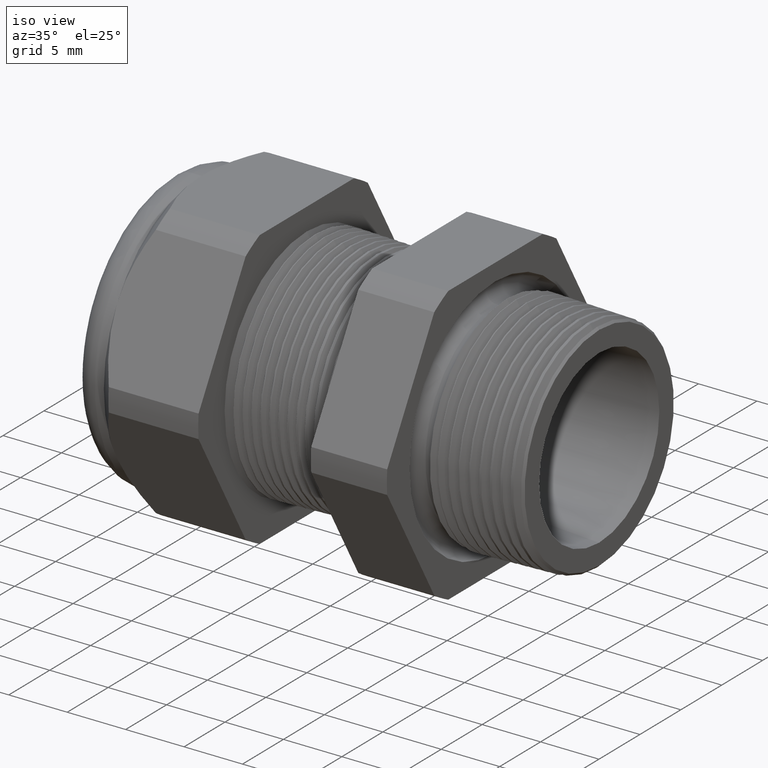
[diagram: clean part render]
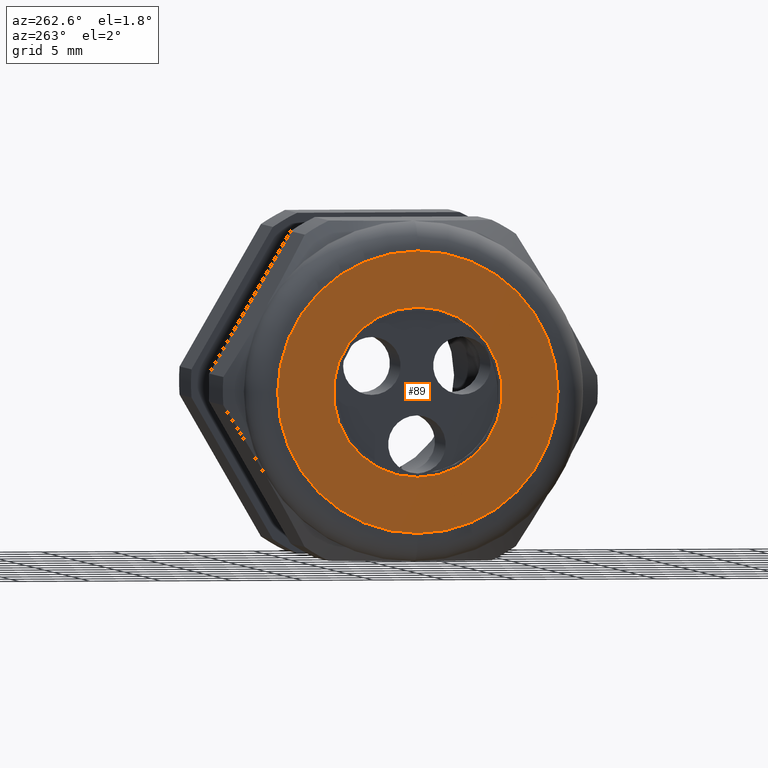
[diagram: tour spotlight — one face highlighted and labeled with its STEP entity id]
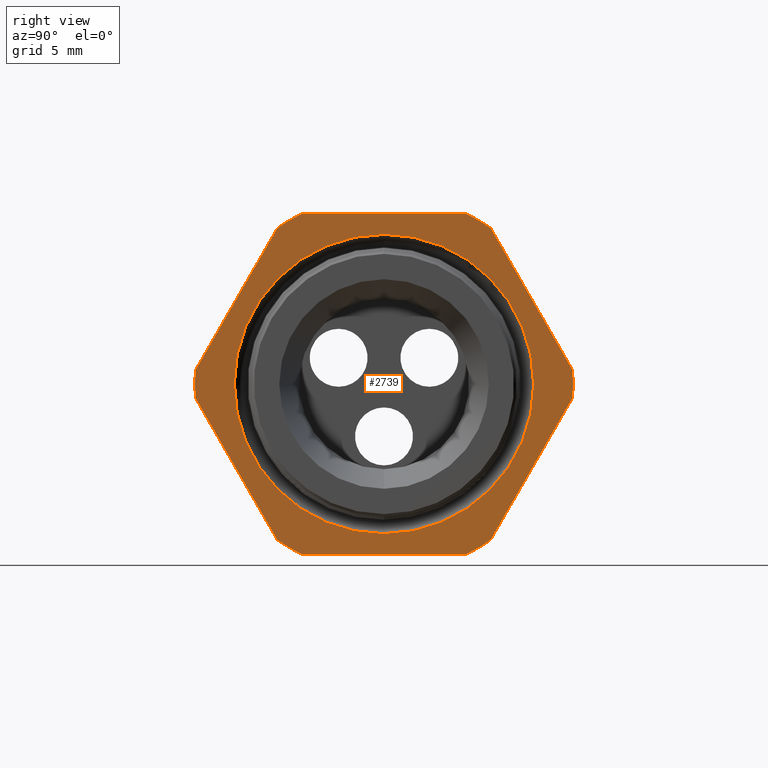
[diagram: tour spotlight — one face highlighted and labeled with its STEP entity id]
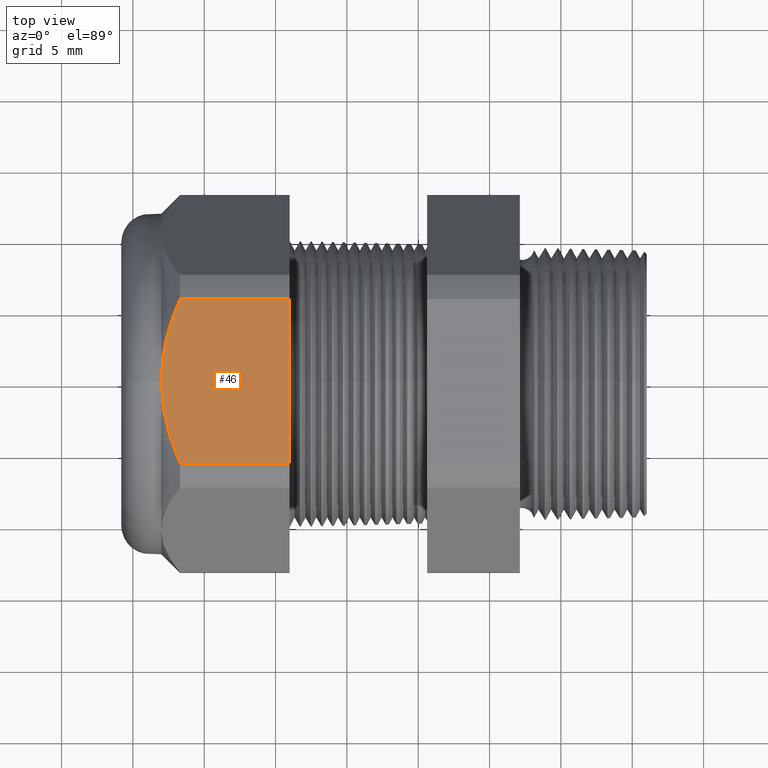
[diagram: tour spotlight — one face highlighted and labeled with its STEP entity id]
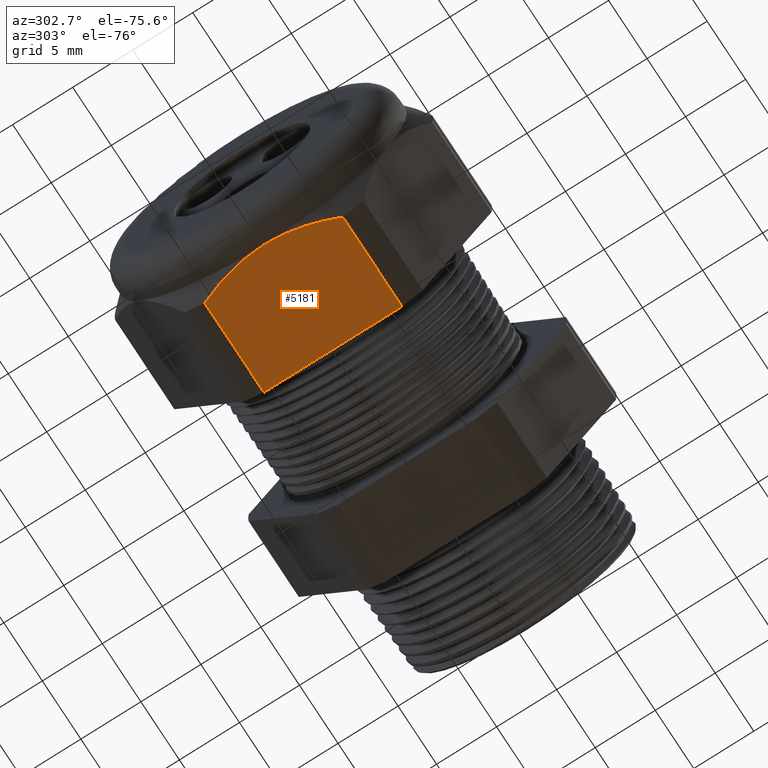
[diagram: tour spotlight — one face highlighted and labeled with its STEP entity id]
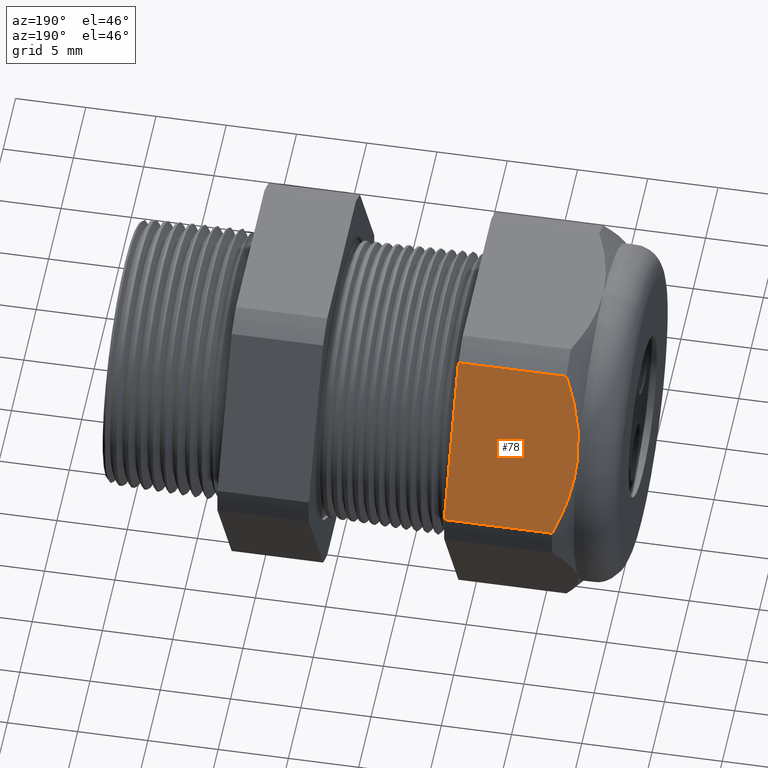
[diagram: tour spotlight — one face highlighted and labeled with its STEP entity id]
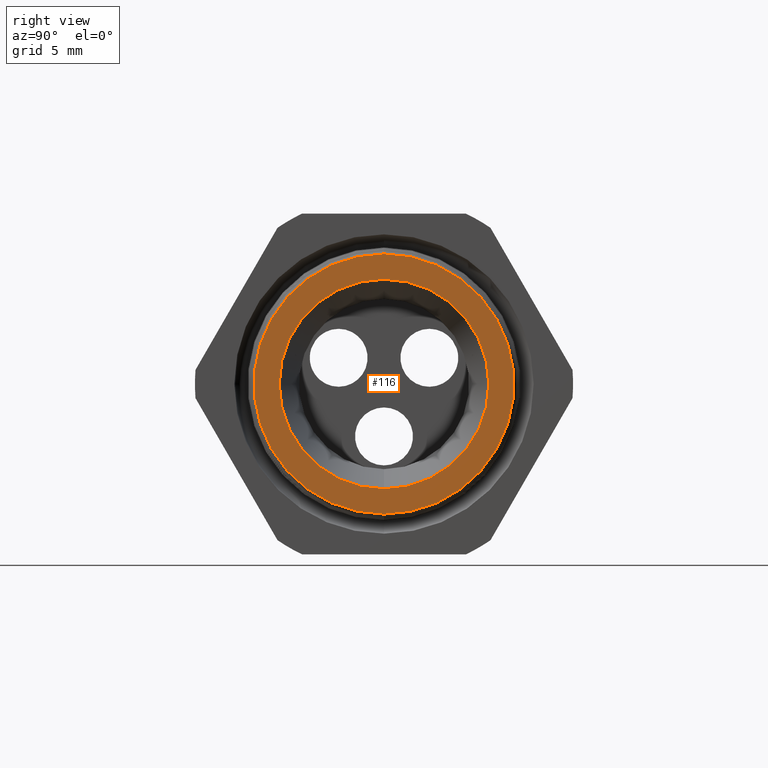
[diagram: tour spotlight — one face highlighted and labeled with its STEP entity id]
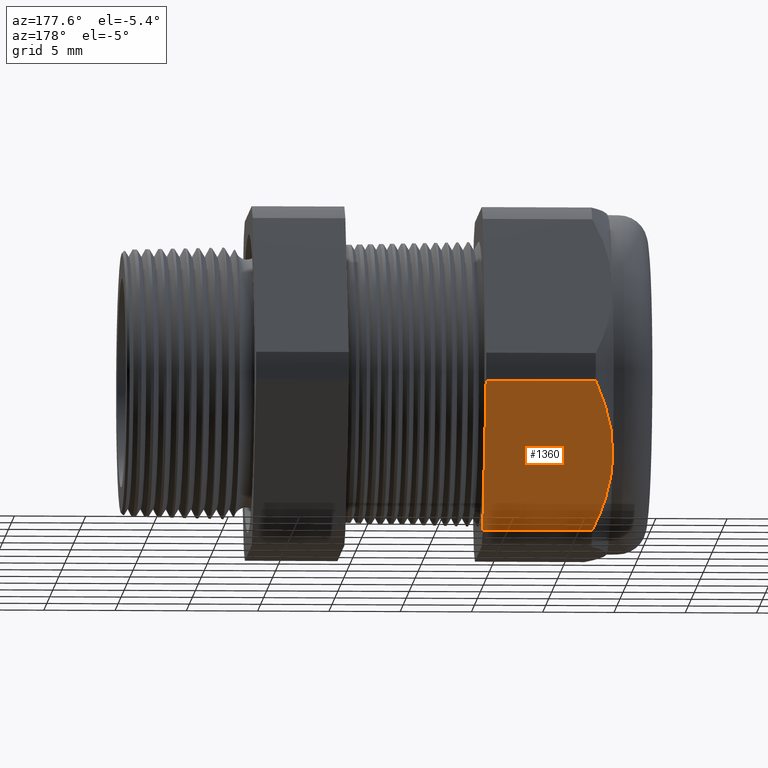
[diagram: tour spotlight — one face highlighted and labeled with its STEP entity id]
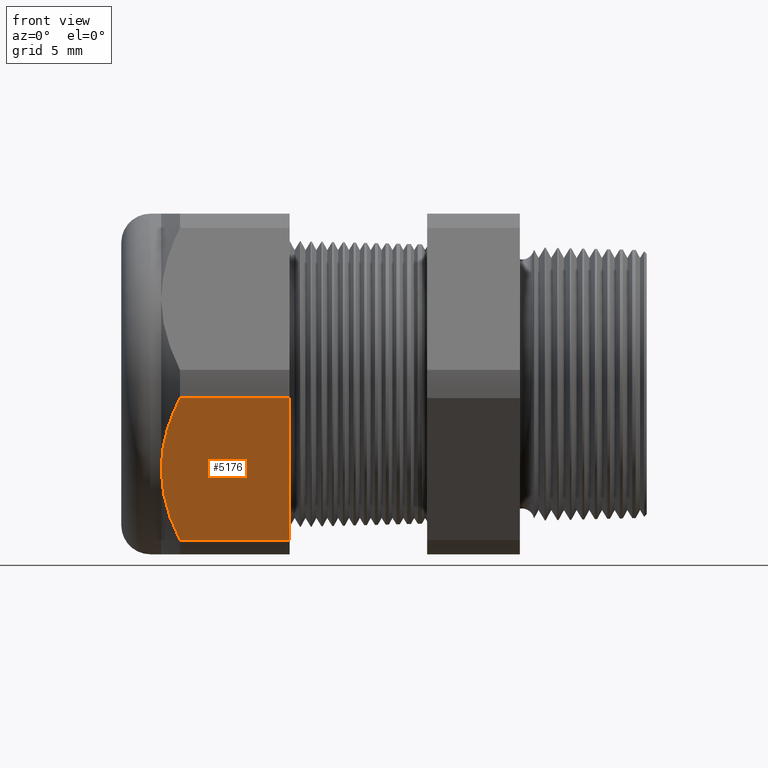
[diagram: tour spotlight — one face highlighted and labeled with its STEP entity id]
A machine part: a face-by-face anatomy tour. The part has 192 B-rep faces; the first image is the clean iso view, then the 8 largest visible faces are spotlighted one at a time (largest first), each with its STEP entity span.

Face 1 — auxiliary view, entity #89. In plain terms, the highlighted planar face has unit normal (-1, 0, 0).
Definition (entity closure, byte-faithful):
#86 = EDGE_CURVE ( 'NONE', #1430, #1429, #1924, .T. ) ;
#89 = ADVANCED_FACE ( 'NONE', ( #1914, #1913 ), #1912, .T. ) ;
#90 = EDGE_LOOP ( 'NONE', ( #91, #92 ) ) ;
#91 = ORIENTED_EDGE ( 'NONE', *, *, #1369, .T. ) ;
#92 = ORIENTED_EDGE ( 'NONE', *, *, #93, .T. ) ;
#93 = EDGE_CURVE ( 'NONE', #1367, #1370, #1907, .T. ) ;
#94 = EDGE_LOOP ( 'NONE', ( #145, #146 ) ) ;
#145 = ORIENTED_EDGE ( 'NONE', *, *, #86, .T. ) ;
#146 = ORIENTED_EDGE ( 'NONE', *, *, #1428, .T. ) ;
#1367 = VERTEX_POINT ( 'NONE', #4123 ) ;
#1369 = EDGE_CURVE ( 'NONE', #1370, #1367, #4122, .T. ) ;
#1370 = VERTEX_POINT ( 'NONE', #4117 ) ;
#1428 = EDGE_CURVE ( 'NONE', #1429, #1430, #4284, .T. ) ;
#1429 = VERTEX_POINT ( 'NONE', #4280 ) ;
#1430 = VERTEX_POINT ( 'NONE', #4279 ) ;
#1903 = DIRECTION ( 'NONE',  ( 0.0000000000000000000, 0.0000000000000000000, 1.000000000000000000 ) ) ;
#1904 = DIRECTION ( 'NONE',  ( -1.000000000000000000, 0.0000000000000000000, 0.0000000000000000000 ) ) ;
#1905 = CARTESIAN_POINT ( 'NONE',  ( -1.409999999999999900, 0.0000000000000000000, 0.0000000000000000000 ) ) ;
#1906 = AXIS2_PLACEMENT_3D ( 'NONE', #1905, #1904, #1903 ) ;
#1907 = CIRCLE ( 'NONE', #1906, 0.3899999999999999600 ) ;
#1908 = DIRECTION ( 'NONE',  ( 0.0000000000000000000, 0.0000000000000000000, 1.000000000000000000 ) ) ;
#1909 = DIRECTION ( 'NONE',  ( -1.000000000000000000, 0.0000000000000000000, 0.0000000000000000000 ) ) ;
#1910 = CARTESIAN_POINT ( 'NONE',  ( -1.409999999999999900, 0.4699999999999999200, 0.0000000000000000000 ) ) ;
#1911 = AXIS2_PLACEMENT_3D ( 'NONE', #1910, #1909, #1908 ) ;
#1912 = PLANE ( 'NONE',  #1911 ) ;
#1913 = FACE_BOUND ( 'NONE', #94, .T. ) ;
#1914 = FACE_OUTER_BOUND ( 'NONE', #90, .T. ) ;
#1915 = DIRECTION ( 'NONE',  ( 0.0000000000000000000, 0.0000000000000000000, -1.000000000000000000 ) ) ;
#1916 = DIRECTION ( 'NONE',  ( 1.000000000000000000, 0.0000000000000000000, 0.0000000000000000000 ) ) ;
#1917 = CARTESIAN_POINT ( 'NONE',  ( -1.409999999999999900, 0.0000000000000000000, 0.0000000000000000000 ) ) ;
#1918 = AXIS2_PLACEMENT_3D ( 'NONE', #1917, #1916, #1915 ) ;
#1924 = CIRCLE ( 'NONE', #1918, 0.2349999999999999900 ) ;
#4117 = CARTESIAN_POINT ( 'NONE',  ( -1.409999999999999900, 0.0000000000000000000, 0.3899999999999999600 ) ) ;
#4118 = DIRECTION ( 'NONE',  ( 0.0000000000000000000, 0.0000000000000000000, 1.000000000000000000 ) ) ;
#4119 = DIRECTION ( 'NONE',  ( -1.000000000000000000, 0.0000000000000000000, 0.0000000000000000000 ) ) ;
#4120 = CARTESIAN_POINT ( 'NONE',  ( -1.409999999999999900, 0.0000000000000000000, 0.0000000000000000000 ) ) ;
#4121 = AXIS2_PLACEMENT_3D ( 'NONE', #4120, #4119, #4118 ) ;
#4122 = CIRCLE ( 'NONE', #4121, 0.3899999999999999600 ) ;
#4123 = CARTESIAN_POINT ( 'NONE',  ( -1.409999999999999900, 5.265981236333617600E-017, -0.3899999999999999600 ) ) ;
#4279 = CARTESIAN_POINT ( 'NONE',  ( -1.409999999999999900, 0.0000000000000000000, -0.2349999999999999900 ) ) ;
#4280 = CARTESIAN_POINT ( 'NONE',  ( -1.409999999999999900, 2.877919977996279800E-017, 0.2349999999999999900 ) ) ;
#4281 = DIRECTION ( 'NONE',  ( 0.0000000000000000000, 0.0000000000000000000, -1.000000000000000000 ) ) ;
#4282 = DIRECTION ( 'NONE',  ( 1.000000000000000000, 0.0000000000000000000, 0.0000000000000000000 ) ) ;
#4283 = AXIS2_PLACEMENT_3D ( 'NONE', #4290, #4282, #4281 ) ;
#4284 = CIRCLE ( 'NONE', #4283, 0.2349999999999999900 ) ;
#4290 = CARTESIAN_POINT ( 'NONE',  ( -1.409999999999999900, 0.0000000000000000000, 0.0000000000000000000 ) ) ;

Face 2 — right view, entity #2739. In plain terms, the highlighted planar face has unit normal (1, 0, 0).
Definition (entity closure, byte-faithful):
#107 = EDGE_CURVE ( 'NONE', #4051, #2204, #1953, .T. ) ;
#956 = VERTEX_POINT ( 'NONE', #3298 ) ;
#958 = EDGE_CURVE ( 'NONE', #956, #959, #3297, .T. ) ;
#959 = VERTEX_POINT ( 'NONE', #3292 ) ;
#1377 = ORIENTED_EDGE ( 'NONE', *, *, #4257, .T. ) ;
#1949 = DIRECTION ( 'NONE',  ( 0.0000000000000000000, 0.0000000000000000000, -1.000000000000000000 ) ) ;
#1950 = DIRECTION ( 'NONE',  ( 1.000000000000000000, 0.0000000000000000000, 0.0000000000000000000 ) ) ;
#1951 = CARTESIAN_POINT ( 'NONE',  ( -0.3100000000000000000, 0.0000000000000000000, 0.0000000000000000000 ) ) ;
#1952 = AXIS2_PLACEMENT_3D ( 'NONE', #1951, #1950, #1949 ) ;
#1953 = CIRCLE ( 'NONE', #1952, 0.5217000000000000500 ) ;
#2204 = VERTEX_POINT ( 'NONE', #4819 ) ;
#2304 = VERTEX_POINT ( 'NONE', #4813 ) ;
#2572 = EDGE_CURVE ( 'NONE', #2204, #2304, #4812, .T. ) ;
#2596 = EDGE_LOOP ( 'NONE', ( #2606, #4250, #4251, #4228, #3811, #3552, #1377, #4259, #4261, #4245, #4255, #4247 ) ) ;
#2606 = ORIENTED_EDGE ( 'NONE', *, *, #2572, .T. ) ;
#2620 = EDGE_CURVE ( 'NONE', #959, #956, #4808, .T. ) ;
#2627 = ORIENTED_EDGE ( 'NONE', *, *, #958, .F. ) ;
#2636 = ORIENTED_EDGE ( 'NONE', *, *, #2620, .F. ) ;
#2739 = ADVANCED_FACE ( 'NONE', ( #4803, #4802 ), #4801, .T. ) ;
#2948 = EDGE_LOOP ( 'NONE', ( #2636, #2627 ) ) ;
#3292 = CARTESIAN_POINT ( 'NONE',  ( -0.3100000000000000000, 0.0000000000000000000, -0.4130016155952135900 ) ) ;
#3293 = DIRECTION ( 'NONE',  ( 0.0000000000000000000, 0.0000000000000000000, -1.000000000000000000 ) ) ;
#3294 = DIRECTION ( 'NONE',  ( 1.000000000000000000, 0.0000000000000000000, 0.0000000000000000000 ) ) ;
#3295 = CARTESIAN_POINT ( 'NONE',  ( -0.3100000000000000000, 0.0000000000000000000, 0.0000000000000000000 ) ) ;
#3296 = AXIS2_PLACEMENT_3D ( 'NONE', #3295, #3294, #3293 ) ;
#3297 = CIRCLE ( 'NONE', #3296, 0.4130016155952135900 ) ;
#3298 = CARTESIAN_POINT ( 'NONE',  ( -0.3100000000000000000, 5.057811065813639400E-017, 0.4130016155952135900 ) ) ;
#3497 = EDGE_CURVE ( 'NONE', #3534, #3570, #4861, .T. ) ;
#3534 = VERTEX_POINT ( 'NONE', #4852 ) ;
#3552 = ORIENTED_EDGE ( 'NONE', *, *, #3497, .T. ) ;
#3564 = EDGE_CURVE ( 'NONE', #4025, #3534, #4851, .T. ) ;
#3570 = VERTEX_POINT ( 'NONE', #4847 ) ;
#3811 = ORIENTED_EDGE ( 'NONE', *, *, #3564, .T. ) ;
#4025 = VERTEX_POINT ( 'NONE', #4846 ) ;
#4051 = VERTEX_POINT ( 'NONE', #4845 ) ;
#4052 = VERTEX_POINT ( 'NONE', #4844 ) ;
#4149 = EDGE_CURVE ( 'NONE', #4052, #4025, #4843, .T. ) ;
#4228 = ORIENTED_EDGE ( 'NONE', *, *, #4149, .T. ) ;
#4244 = VERTEX_POINT ( 'NONE', #4838 ) ;
#4245 = ORIENTED_EDGE ( 'NONE', *, *, #4253, .T. ) ;
#4246 = EDGE_CURVE ( 'NONE', #4248, #4052, #4837, .T. ) ;
#4247 = ORIENTED_EDGE ( 'NONE', *, *, #107, .T. ) ;
#4248 = VERTEX_POINT ( 'NONE', #4833 ) ;
#4249 = EDGE_CURVE ( 'NONE', #2304, #4248, #4894, .T. ) ;
#4250 = ORIENTED_EDGE ( 'NONE', *, *, #4249, .T. ) ;
#4251 = ORIENTED_EDGE ( 'NONE', *, *, #4246, .T. ) ;
#4252 = EDGE_CURVE ( 'NONE', #4254, #4051, #4895, .T. ) ;
#4253 = EDGE_CURVE ( 'NONE', #4244, #4254, #4886, .T. ) ;
#4254 = VERTEX_POINT ( 'NONE', #4881 ) ;
#4255 = ORIENTED_EDGE ( 'NONE', *, *, #4252, .T. ) ;
#4256 = VERTEX_POINT ( 'NONE', #4880 ) ;
#4257 = EDGE_CURVE ( 'NONE', #3570, #4258, #4879, .T. ) ;
#4258 = VERTEX_POINT ( 'NONE', #4875 ) ;
#4259 = ORIENTED_EDGE ( 'NONE', *, *, #4260, .T. ) ;
#4260 = EDGE_CURVE ( 'NONE', #4258, #4256, #4874, .T. ) ;
#4261 = ORIENTED_EDGE ( 'NONE', *, *, #4262, .T. ) ;
#4262 = EDGE_CURVE ( 'NONE', #4256, #4244, #4869, .T. ) ;
#4801 = PLANE ( 'NONE',  #4865 ) ;
#4802 = FACE_OUTER_BOUND ( 'NONE', #2596, .T. ) ;
#4803 = FACE_BOUND ( 'NONE', #2948, .T. ) ;
#4804 = DIRECTION ( 'NONE',  ( 0.0000000000000000000, 0.0000000000000000000, -1.000000000000000000 ) ) ;
#4805 = DIRECTION ( 'NONE',  ( 1.000000000000000000, 0.0000000000000000000, 0.0000000000000000000 ) ) ;
#4806 = CARTESIAN_POINT ( 'NONE',  ( -0.3100000000000000000, 0.0000000000000000000, 0.0000000000000000000 ) ) ;
#4807 = AXIS2_PLACEMENT_3D ( 'NONE', #4806, #4805, #4804 ) ;
#4808 = CIRCLE ( 'NONE', #4807, 0.4130016155952135900 ) ;
#4809 = DIRECTION ( 'NONE',  ( 0.0000000000000000000, 0.5000000000000000000, 0.8660254037844386000 ) ) ;
#4810 = VECTOR ( 'NONE', #4809, 39.37007874015748900 ) ;
#4811 = CARTESIAN_POINT ( 'NONE',  ( -0.3100000000000000000, 0.6420319397786863300, 0.1720319397786860500 ) ) ;
#4812 = LINE ( 'NONE', #4811, #4810 ) ;
#4813 = CARTESIAN_POINT ( 'NONE',  ( -0.3100000000000000000, 0.5202473208008777700, -0.03890520787129528300 ) ) ;
#4819 = CARTESIAN_POINT ( 'NONE',  ( -0.3100000000000000000, 0.2938165587564948700, -0.4310947921287048800 ) ) ;
#4833 = CARTESIAN_POINT ( 'NONE',  ( -0.3100000000000000000, 0.5202473208008776600, 0.03890520787129518600 ) ) ;
#4834 = DIRECTION ( 'NONE',  ( 0.0000000000000000000, -0.4999999999999998300, 0.8660254037844386000 ) ) ;
#4835 = VECTOR ( 'NONE', #4834, 39.37007874015748900 ) ;
#4836 = CARTESIAN_POINT ( 'NONE',  ( -0.3100000000000000000, 0.6420319397786862200, -0.1720319397786860500 ) ) ;
#4837 = LINE ( 'NONE', #4836, #4835 ) ;
#4838 = CARTESIAN_POINT ( 'NONE',  ( -0.3100000000000000000, -0.2938165587564942600, -0.4310947921287053300 ) ) ;
#4839 = DIRECTION ( 'NONE',  ( 0.0000000000000000000, 0.0000000000000000000, -1.000000000000000000 ) ) ;
#4840 = DIRECTION ( 'NONE',  ( 1.000000000000000000, 0.0000000000000000000, 0.0000000000000000000 ) ) ;
#4841 = CARTESIAN_POINT ( 'NONE',  ( -0.3100000000000000000, 0.0000000000000000000, 0.0000000000000000000 ) ) ;
#4842 = AXIS2_PLACEMENT_3D ( 'NONE', #4841, #4840, #4839 ) ;
#4843 = CIRCLE ( 'NONE', #4842, 0.5217000000000000500 ) ;
#4844 = CARTESIAN_POINT ( 'NONE',  ( -0.3100000000000000000, 0.2938165587564948700, 0.4310947921287048800 ) ) ;
#4845 = CARTESIAN_POINT ( 'NONE',  ( -0.3100000000000000000, 0.2264307620443831200, -0.4700000000000000300 ) ) ;
#4846 = CARTESIAN_POINT ( 'NONE',  ( -0.3100000000000000000, 0.2264307620443832800, 0.4699999999999999200 ) ) ;
#4847 = CARTESIAN_POINT ( 'NONE',  ( -0.3100000000000000000, -0.2938165587564948700, 0.4310947921287048800 ) ) ;
#4848 = DIRECTION ( 'NONE',  ( 0.0000000000000000000, -1.000000000000000000, 0.0000000000000000000 ) ) ;
#4849 = VECTOR ( 'NONE', #4848, 39.37007874015748100 ) ;
#4850 = CARTESIAN_POINT ( 'NONE',  ( -0.3100000000000000000, 0.9399999999999999500, 0.4699999999999999200 ) ) ;
#4851 = LINE ( 'NONE', #4850, #4849 ) ;
#4852 = CARTESIAN_POINT ( 'NONE',  ( -0.3100000000000000000, -0.2264307620443835600, 0.4699999999999997500 ) ) ;
#4857 = DIRECTION ( 'NONE',  ( 0.0000000000000000000, 0.0000000000000000000, -1.000000000000000000 ) ) ;
#4858 = DIRECTION ( 'NONE',  ( 1.000000000000000000, 0.0000000000000000000, 0.0000000000000000000 ) ) ;
#4859 = CARTESIAN_POINT ( 'NONE',  ( -0.3100000000000000000, 0.0000000000000000000, 0.0000000000000000000 ) ) ;
#4860 = AXIS2_PLACEMENT_3D ( 'NONE', #4859, #4858, #4857 ) ;
#4861 = CIRCLE ( 'NONE', #4860, 0.5217000000000000500 ) ;
#4862 = DIRECTION ( 'NONE',  ( 0.0000000000000000000, 0.0000000000000000000, -1.000000000000000000 ) ) ;
#4863 = DIRECTION ( 'NONE',  ( 1.000000000000000000, 0.0000000000000000000, 0.0000000000000000000 ) ) ;
#4864 = CARTESIAN_POINT ( 'NONE',  ( -0.3100000000000000000, 0.9399999999999999500, 0.0000000000000000000 ) ) ;
#4865 = AXIS2_PLACEMENT_3D ( 'NONE', #4864, #4863, #4862 ) ;
#4866 = DIRECTION ( 'NONE',  ( 0.0000000000000000000, 0.5000000000000001100, -0.8660254037844384900 ) ) ;
#4867 = VECTOR ( 'NONE', #4866, 39.37007874015748900 ) ;
#4868 = CARTESIAN_POINT ( 'NONE',  ( -0.3100000000000000000, -0.1720319397786861700, -0.6420319397786864400 ) ) ;
#4869 = LINE ( 'NONE', #4868, #4867 ) ;
#4870 = DIRECTION ( 'NONE',  ( 0.0000000000000000000, 0.0000000000000000000, -1.000000000000000000 ) ) ;
#4871 = DIRECTION ( 'NONE',  ( 1.000000000000000000, 0.0000000000000000000, 0.0000000000000000000 ) ) ;
#4872 = CARTESIAN_POINT ( 'NONE',  ( -0.3100000000000000000, 0.0000000000000000000, 0.0000000000000000000 ) ) ;
#4873 = AXIS2_PLACEMENT_3D ( 'NONE', #4872, #4871, #4870 ) ;
#4874 = CIRCLE ( 'NONE', #4873, 0.5217000000000000500 ) ;
#4875 = CARTESIAN_POINT ( 'NONE',  ( -0.3100000000000000000, -0.5202473208008777700, 0.03890520787129464500 ) ) ;
#4876 = DIRECTION ( 'NONE',  ( 0.0000000000000000000, -0.4999999999999997200, -0.8660254037844388200 ) ) ;
#4877 = VECTOR ( 'NONE', #4876, 39.37007874015748100 ) ;
#4878 = CARTESIAN_POINT ( 'NONE',  ( -0.3100000000000000000, -0.1720319397786864200, 0.6420319397786857800 ) ) ;
#4879 = LINE ( 'NONE', #4878, #4877 ) ;
#4880 = CARTESIAN_POINT ( 'NONE',  ( -0.3100000000000000000, -0.5202473208008777700, -0.03890520787129494300 ) ) ;
#4881 = CARTESIAN_POINT ( 'NONE',  ( -0.3100000000000000000, -0.2264307620443830900, -0.4700000000000000300 ) ) ;
#4882 = DIRECTION ( 'NONE',  ( 0.0000000000000000000, 0.0000000000000000000, -1.000000000000000000 ) ) ;
#4883 = DIRECTION ( 'NONE',  ( 1.000000000000000000, 0.0000000000000000000, 0.0000000000000000000 ) ) ;
#4884 = CARTESIAN_POINT ( 'NONE',  ( -0.3100000000000000000, 0.0000000000000000000, 0.0000000000000000000 ) ) ;
#4885 = AXIS2_PLACEMENT_3D ( 'NONE', #4884, #4883, #4882 ) ;
#4886 = CIRCLE ( 'NONE', #4885, 0.5217000000000000500 ) ;
#4887 = DIRECTION ( 'NONE',  ( 0.0000000000000000000, 1.000000000000000000, 0.0000000000000000000 ) ) ;
#4888 = VECTOR ( 'NONE', #4887, 39.37007874015748100 ) ;
#4889 = CARTESIAN_POINT ( 'NONE',  ( -0.3100000000000000000, 0.9399999999999999500, -0.4700000000000000300 ) ) ;
#4890 = DIRECTION ( 'NONE',  ( 0.0000000000000000000, 0.0000000000000000000, -1.000000000000000000 ) ) ;
#4891 = DIRECTION ( 'NONE',  ( 1.000000000000000000, 0.0000000000000000000, 0.0000000000000000000 ) ) ;
#4892 = CARTESIAN_POINT ( 'NONE',  ( -0.3100000000000000000, 0.0000000000000000000, 0.0000000000000000000 ) ) ;
#4893 = AXIS2_PLACEMENT_3D ( 'NONE', #4892, #4891, #4890 ) ;
#4894 = CIRCLE ( 'NONE', #4893, 0.5217000000000000500 ) ;
#4895 = LINE ( 'NONE', #4889, #4888 ) ;

Face 3 — top view, entity #46. In plain terms, the highlighted planar face has unit normal (0, 0, 1).
Definition (entity closure, byte-faithful):
#1 = ORIENTED_EDGE ( 'NONE', *, *, #3, .F. ) ;
#3 = EDGE_CURVE ( 'NONE', #43, #4, #1742, .T. ) ;
#4 = VERTEX_POINT ( 'NONE', #1734 ) ;
#40 = VERTEX_POINT ( 'NONE', #1779 ) ;
#42 = EDGE_CURVE ( 'NONE', #43, #40, #1778, .T. ) ;
#43 = VERTEX_POINT ( 'NONE', #1774 ) ;
#46 = ADVANCED_FACE ( 'NONE', ( #1829 ), #1823, .T. ) ;
#47 = EDGE_LOOP ( 'NONE', ( #48, #49, #51, #5212, #1 ) ) ;
#48 = ORIENTED_EDGE ( 'NONE', *, *, #42, .T. ) ;
#49 = ORIENTED_EDGE ( 'NONE', *, *, #50, .T. ) ;
#50 = EDGE_CURVE ( 'NONE', #40, #1358, #1818, .T. ) ;
#51 = ORIENTED_EDGE ( 'NONE', *, *, #52, .T. ) ;
#52 = EDGE_CURVE ( 'NONE', #1358, #5214, #1817, .T. ) ;
#1358 = VERTEX_POINT ( 'NONE', #4142 ) ;
#1734 = CARTESIAN_POINT ( 'NONE',  ( -0.9454330708661420300, -0.2264307620443835600, 0.4699999999999997500 ) ) ;
#1735 = DIRECTION ( 'NONE',  ( 0.0000000000000000000, -1.000000000000000000, 0.0000000000000000000 ) ) ;
#1736 = VECTOR ( 'NONE', #1735, 39.37007874015748100 ) ;
#1737 = CARTESIAN_POINT ( 'NONE',  ( -0.9454330708661420300, 0.3950000000000000200, 0.4699999999999999200 ) ) ;
#1742 = LINE ( 'NONE', #1737, #1736 ) ;
#1774 = CARTESIAN_POINT ( 'NONE',  ( -0.9454330708661420300, 0.2264307620443832800, 0.4699999999999999200 ) ) ;
#1775 = DIRECTION ( 'NONE',  ( -1.000000000000000000, 0.0000000000000000000, 0.0000000000000000000 ) ) ;
#1776 = VECTOR ( 'NONE', #1775, 39.37007874015748100 ) ;
#1777 = CARTESIAN_POINT ( 'NONE',  ( 0.04000000000000011900, 0.2264307620443832800, 0.4699999999999999200 ) ) ;
#1778 = LINE ( 'NONE', #1777, #1776 ) ;
#1779 = CARTESIAN_POINT ( 'NONE',  ( -1.248063779527559300, 0.2264307620443832800, 0.4699999999999999200 ) ) ;
#1804 = CARTESIAN_POINT ( 'NONE',  ( -1.294778598172673200, -0.07783554612607102000, 0.4699999999999999200 ) ) ;
#1805 = CARTESIAN_POINT ( 'NONE',  ( -1.299763779527558900, -0.03934296915062179800, 0.4699999999999998600 ) ) ;
#1806 = CARTESIAN_POINT ( 'NONE',  ( -1.299763779527559200, 0.0000000000000000000, 0.4699999999999999200 ) ) ;
#1807 = CARTESIAN_POINT ( 'NONE',  ( -1.299763779527559200, 0.0000000000000000000, 0.4699999999999999200 ) ) ;
#1808 = CARTESIAN_POINT ( 'NONE',  ( -1.299763779527559200, 0.01964242875915815600, 0.4699999999999999200 ) ) ;
#1809 = CARTESIAN_POINT ( 'NONE',  ( -1.298517019735540900, 0.03924163778662356100, 0.4699999999999999700 ) ) ;
#1810 = CARTESIAN_POINT ( 'NONE',  ( -1.293749478914869100, 0.07782038235249977300, 0.4699999999999999200 ) ) ;
#1811 = CARTESIAN_POINT ( 'NONE',  ( -1.290231001418866900, 0.09688970369981479700, 0.4699999999999999700 ) ) ;
#1812 = CARTESIAN_POINT ( 'NONE',  ( -1.281202062721104900, 0.1346420459264778800, 0.4699999999999999200 ) ) ;
#1813 = CARTESIAN_POINT ( 'NONE',  ( -1.275692781244512700, 0.1533252955870067800, 0.4699999999999999200 ) ) ;
#1814 = CARTESIAN_POINT ( 'NONE',  ( -1.262974602953726100, 0.1903621927138390800, 0.4699999999999999700 ) ) ;
#1815 = CARTESIAN_POINT ( 'NONE',  ( -1.255800509309333000, 0.2086052162099335800, 0.4699999999999997500 ) ) ;
#1816 = CARTESIAN_POINT ( 'NONE',  ( -1.248063779527559300, 0.2264307620443832800, 0.4699999999999999200 ) ) ;
#1817 = B_SPLINE_CURVE_WITH_KNOTS ( 'NONE', 3,
 ( #1806, #1805, #1804, #1862, #1861, #1860, #1859, #1858 ),
 .UNSPECIFIED., .F., .F.,
 ( 4, 2, 2, 4 ),
 ( 0.01501897965151427300, 0.01796263803772293500, 0.01943446723082726400, 0.02090629642393159600 ),
 .UNSPECIFIED. ) ;
#1818 = B_SPLINE_CURVE_WITH_KNOTS ( 'NONE', 3,
 ( #1816, #1815, #1814, #1813, #1812, #1811, #1810, #1809, #1808, #1807 ),
 .UNSPECIFIED., .F., .F.,
 ( 4, 2, 2, 2, 4 ),
 ( 0.009140358755258070800, 0.01061001397932212100, 0.01207966920338617200, 0.01354932442745022300, 0.01501897965151427300 ),
 .UNSPECIFIED. ) ;
#1819 = DIRECTION ( 'NONE',  ( 1.000000000000000000, 0.0000000000000000000, 0.0000000000000000000 ) ) ;
#1820 = DIRECTION ( 'NONE',  ( 0.0000000000000000000, 0.0000000000000000000, 1.000000000000000000 ) ) ;
#1821 = CARTESIAN_POINT ( 'NONE',  ( 0.04000000000000011900, -0.2264307620443832800, 0.4699999999999999200 ) ) ;
#1822 = AXIS2_PLACEMENT_3D ( 'NONE', #1821, #1820, #1819 ) ;
#1823 = PLANE ( 'NONE',  #1822 ) ;
#1829 = FACE_OUTER_BOUND ( 'NONE', #47, .T. ) ;
#1858 = CARTESIAN_POINT ( 'NONE',  ( -1.248063779527559300, -0.2264307620443835900, 0.4699999999999999200 ) ) ;
#1859 = CARTESIAN_POINT ( 'NONE',  ( -1.255800659726856300, -0.2086048696456210800, 0.4700000000000000300 ) ) ;
#1860 = CARTESIAN_POINT ( 'NONE',  ( -1.262949366997028400, -0.1904348960138968800, 0.4699999999999999200 ) ) ;
#1861 = CARTESIAN_POINT ( 'NONE',  ( -1.275712352585575800, -0.1532690879941745200, 0.4699999999999997500 ) ) ;
#1862 = CARTESIAN_POINT ( 'NONE',  ( -1.281231388637372700, -0.1345390626635396500, 0.4699999999999999200 ) ) ;
#4142 = CARTESIAN_POINT ( 'NONE',  ( -1.299763779527559200, 0.0000000000000000000, 0.4699999999999999200 ) ) ;
#4490 = CARTESIAN_POINT ( 'NONE',  ( 0.04000000000000011900, -0.2264307620443835600, 0.4699999999999997500 ) ) ;
#4744 = VECTOR ( 'NONE', #5045, 39.37007874015748100 ) ;
#4990 = LINE ( 'NONE', #4490, #4744 ) ;
#5040 = CARTESIAN_POINT ( 'NONE',  ( -1.248063779527559300, -0.2264307620443835900, 0.4699999999999999200 ) ) ;
#5045 = DIRECTION ( 'NONE',  ( -1.000000000000000000, 0.0000000000000000000, 0.0000000000000000000 ) ) ;
#5211 = EDGE_CURVE ( 'NONE', #4, #5214, #4990, .T. ) ;
#5212 = ORIENTED_EDGE ( 'NONE', *, *, #5211, .F. ) ;
#5214 = VERTEX_POINT ( 'NONE', #5040 ) ;

Face 4 — auxiliary view, entity #5181. In plain terms, the highlighted planar face has unit normal (0, 0, -1).
Definition (entity closure, byte-faithful):
#216 = EDGE_CURVE ( 'NONE', #1422, #5202, #2142, .T. ) ;
#738 = ORIENTED_EDGE ( 'NONE', *, *, #216, .T. ) ;
#965 = EDGE_CURVE ( 'NONE', #5185, #1422, #3341, .T. ) ;
#1422 = VERTEX_POINT ( 'NONE', #4296 ) ;
#2128 = CARTESIAN_POINT ( 'NONE',  ( -1.248063779527559300, 0.2264307620443831200, -0.4700000000000000300 ) ) ;
#2129 = CARTESIAN_POINT ( 'NONE',  ( -1.255800509309333400, 0.2086052162099334700, -0.4700000000000000300 ) ) ;
#2130 = CARTESIAN_POINT ( 'NONE',  ( -1.262974602953726300, 0.1903621927138388900, -0.4700000000000000300 ) ) ;
#2131 = CARTESIAN_POINT ( 'NONE',  ( -1.275692781244513400, 0.1533252955870066900, -0.4700000000000000800 ) ) ;
#2132 = CARTESIAN_POINT ( 'NONE',  ( -1.281202062721105600, 0.1346420459264778300, -0.4700000000000002000 ) ) ;
#2133 = CARTESIAN_POINT ( 'NONE',  ( -1.290231001418866700, 0.09688970369981478300, -0.4699999999999999700 ) ) ;
#2134 = CARTESIAN_POINT ( 'NONE',  ( -1.293749478914868700, 0.07782038235249985600, -0.4700000000000000300 ) ) ;
#2135 = CARTESIAN_POINT ( 'NONE',  ( -1.298517019735541300, 0.03924163778662365800, -0.4700000000000000300 ) ) ;
#2136 = CARTESIAN_POINT ( 'NONE',  ( -1.299763779527558900, 0.01964242875915822200, -0.4700000000000000800 ) ) ;
#2137 = CARTESIAN_POINT ( 'NONE',  ( -1.299763779527559200, 0.0000000000000000000, -0.4700000000000000300 ) ) ;
#2142 = B_SPLINE_CURVE_WITH_KNOTS ( 'NONE', 3,
 ( #2137, #2136, #2135, #2134, #2133, #2132, #2131, #2130, #2129, #2128 ),
 .UNSPECIFIED., .F., .F.,
 ( 4, 2, 2, 2, 4 ),
 ( 0.01398828679202869000, 0.01545854684696777000, 0.01692880690190685200, 0.01839906695684593100, 0.01986932701178501000 ),
 .UNSPECIFIED. ) ;
#3330 = CARTESIAN_POINT ( 'NONE',  ( -1.299763779527559200, 0.0000000000000000000, -0.4700000000000000300 ) ) ;
#3331 = CARTESIAN_POINT ( 'NONE',  ( -1.299763779527558900, -0.03934296915062162500, -0.4699999999999999200 ) ) ;
#3332 = CARTESIAN_POINT ( 'NONE',  ( -1.294778598172672500, -0.07783554612607064500, -0.4699999999999999700 ) ) ;
#3333 = CARTESIAN_POINT ( 'NONE',  ( -1.281231388637373400, -0.1345390626635392100, -0.4700000000000000300 ) ) ;
#3334 = CARTESIAN_POINT ( 'NONE',  ( -1.275712352585575800, -0.1532690879941739600, -0.4699999999999999700 ) ) ;
#3335 = CARTESIAN_POINT ( 'NONE',  ( -1.262949366997028900, -0.1904348960138962400, -0.4700000000000000300 ) ) ;
#3336 = CARTESIAN_POINT ( 'NONE',  ( -1.255800659726855600, -0.2086048696456203900, -0.4700000000000000800 ) ) ;
#3337 = CARTESIAN_POINT ( 'NONE',  ( -1.248063779527559300, -0.2264307620443830600, -0.4700000000000000300 ) ) ;
#3341 = B_SPLINE_CURVE_WITH_KNOTS ( 'NONE', 3,
 ( #3337, #3336, #3335, #3334, #3333, #3332, #3331, #3330 ),
 .UNSPECIFIED., .F., .F.,
 ( 4, 2, 2, 4 ),
 ( 0.008098547117357340200, 0.009570982036025176300, 0.01104341695469301400, 0.01398828679202869000 ),
 .UNSPECIFIED. ) ;
#4296 = CARTESIAN_POINT ( 'NONE',  ( -1.299763779527559200, 0.0000000000000000000, -0.4700000000000000300 ) ) ;
#4955 = VECTOR ( 'NONE', #5020, 39.37007874015748100 ) ;
#4956 = CARTESIAN_POINT ( 'NONE',  ( 0.04000000000000011900, -0.2264307620443830900, -0.4700000000000000300 ) ) ;
#4957 = LINE ( 'NONE', #4956, #4955 ) ;
#4958 = DIRECTION ( 'NONE',  ( -1.000000000000000000, 0.0000000000000000000, 0.0000000000000000000 ) ) ;
#4959 = DIRECTION ( 'NONE',  ( 0.0000000000000000000, 0.0000000000000000000, -1.000000000000000000 ) ) ;
#4960 = CARTESIAN_POINT ( 'NONE',  ( 0.04000000000000011900, 0.2264307620443830900, -0.4700000000000000300 ) ) ;
#4961 = AXIS2_PLACEMENT_3D ( 'NONE', #4960, #4959, #4958 ) ;
#4962 = PLANE ( 'NONE',  #4961 ) ;
#4963 = FACE_OUTER_BOUND ( 'NONE', #5179, .T. ) ;
#4991 = DIRECTION ( 'NONE',  ( -1.000000000000000000, 0.0000000000000000000, 0.0000000000000000000 ) ) ;
#4992 = VECTOR ( 'NONE', #4991, 39.37007874015748100 ) ;
#4993 = CARTESIAN_POINT ( 'NONE',  ( 0.04000000000000011900, 0.2264307620443831200, -0.4700000000000000300 ) ) ;
#4994 = LINE ( 'NONE', #4993, #4992 ) ;
#4995 = CARTESIAN_POINT ( 'NONE',  ( -1.248063779527559300, 0.2264307620443831200, -0.4700000000000000300 ) ) ;
#4996 = CARTESIAN_POINT ( 'NONE',  ( -0.9454330708661420300, 0.2264307620443831200, -0.4700000000000000300 ) ) ;
#4997 = DIRECTION ( 'NONE',  ( 0.0000000000000000000, 1.000000000000000000, 0.0000000000000000000 ) ) ;
#4998 = VECTOR ( 'NONE', #4997, 39.37007874015748100 ) ;
#4999 = CARTESIAN_POINT ( 'NONE',  ( -0.9454330708661420300, 0.3950000000000000200, -0.4700000000000000300 ) ) ;
#5000 = LINE ( 'NONE', #4999, #4998 ) ;
#5001 = CARTESIAN_POINT ( 'NONE',  ( -0.9454330708661420300, -0.2264307620443830900, -0.4700000000000000300 ) ) ;
#5019 = CARTESIAN_POINT ( 'NONE',  ( -1.248063779527559300, -0.2264307620443830600, -0.4700000000000000300 ) ) ;
#5020 = DIRECTION ( 'NONE',  ( -1.000000000000000000, 0.0000000000000000000, 0.0000000000000000000 ) ) ;
#5177 = ORIENTED_EDGE ( 'NONE', *, *, #5183, .T. ) ;
#5178 = ORIENTED_EDGE ( 'NONE', *, *, #965, .T. ) ;
#5179 = EDGE_LOOP ( 'NONE', ( #5177, #5178, #738, #5210, #5194 ) ) ;
#5181 = ADVANCED_FACE ( 'NONE', ( #4963 ), #4962, .T. ) ;
#5183 = EDGE_CURVE ( 'NONE', #5196, #5185, #4957, .T. ) ;
#5185 = VERTEX_POINT ( 'NONE', #5019 ) ;
#5194 = ORIENTED_EDGE ( 'NONE', *, *, #5197, .F. ) ;
#5196 = VERTEX_POINT ( 'NONE', #5001 ) ;
#5197 = EDGE_CURVE ( 'NONE', #5196, #5198, #5000, .T. ) ;
#5198 = VERTEX_POINT ( 'NONE', #4996 ) ;
#5202 = VERTEX_POINT ( 'NONE', #4995 ) ;
#5209 = EDGE_CURVE ( 'NONE', #5198, #5202, #4994, .T. ) ;
#5210 = ORIENTED_EDGE ( 'NONE', *, *, #5209, .F. ) ;

Face 5 — auxiliary view, entity #78. In plain terms, the highlighted planar face has unit normal (0, 0.866, 0.5).
Definition (entity closure, byte-faithful):
#53 = ORIENTED_EDGE ( 'NONE', *, *, #54, .T. ) ;
#54 = EDGE_CURVE ( 'NONE', #72, #1416, #1857, .T. ) ;
#55 = ORIENTED_EDGE ( 'NONE', *, *, #56, .T. ) ;
#56 = EDGE_CURVE ( 'NONE', #1416, #57, #1846, .T. ) ;
#57 = VERTEX_POINT ( 'NONE', #1845 ) ;
#58 = ORIENTED_EDGE ( 'NONE', *, *, #59, .F. ) ;
#59 = EDGE_CURVE ( 'NONE', #60, #57, #1838, .T. ) ;
#60 = VERTEX_POINT ( 'NONE', #1834 ) ;
#61 = ORIENTED_EDGE ( 'NONE', *, *, #62, .F. ) ;
#62 = EDGE_CURVE ( 'NONE', #75, #60, #1833, .T. ) ;
#72 = VERTEX_POINT ( 'NONE', #1881 ) ;
#74 = EDGE_CURVE ( 'NONE', #75, #72, #1875, .T. ) ;
#75 = VERTEX_POINT ( 'NONE', #1871 ) ;
#78 = ADVANCED_FACE ( 'NONE', ( #1864 ), #1863, .T. ) ;
#79 = EDGE_LOOP ( 'NONE', ( #80, #53, #55, #58, #61 ) ) ;
#80 = ORIENTED_EDGE ( 'NONE', *, *, #74, .T. ) ;
#1416 = VERTEX_POINT ( 'NONE', #4223 ) ;
#1830 = DIRECTION ( 'NONE',  ( 0.0000000000000000000, -0.4999999999999998300, 0.8660254037844386000 ) ) ;
#1831 = VECTOR ( 'NONE', #1830, 39.37007874015748900 ) ;
#1832 = CARTESIAN_POINT ( 'NONE',  ( -0.9454330708661420300, 0.5057819397786861300, 0.06395998275257334900 ) ) ;
#1833 = LINE ( 'NONE', #1832, #1831 ) ;
#1834 = CARTESIAN_POINT ( 'NONE',  ( -0.9454330708661420300, 0.2938165587564948700, 0.4310947921287048800 ) ) ;
#1835 = DIRECTION ( 'NONE',  ( -1.000000000000000000, 0.0000000000000000000, 0.0000000000000000000 ) ) ;
#1836 = VECTOR ( 'NONE', #1835, 39.37007874015748100 ) ;
#1837 = CARTESIAN_POINT ( 'NONE',  ( 0.04000000000000011900, 0.2938165587564948700, 0.4310947921287048800 ) ) ;
#1838 = LINE ( 'NONE', #1837, #1836 ) ;
#1839 = CARTESIAN_POINT ( 'NONE',  ( -1.248063779527559300, 0.2938165587564948700, 0.4310947921287048800 ) ) ;
#1840 = CARTESIAN_POINT ( 'NONE',  ( -1.263717189021966500, 0.3118494083116971600, 0.3998609804938486100 ) ) ;
#1841 = CARTESIAN_POINT ( 'NONE',  ( -1.276822062588142800, 0.3304876304616240500, 0.3675786327674194200 ) ) ;
#1842 = CARTESIAN_POINT ( 'NONE',  ( -1.294818111347314700, 0.3682441305491642200, 0.3021824562998213800 ) ) ;
#1843 = CARTESIAN_POINT ( 'NONE',  ( -1.299763779527558500, 0.3874426189162285500, 0.2689296990195457200 ) ) ;
#1844 = CARTESIAN_POINT ( 'NONE',  ( -1.299763779527559200, 0.4070319397786864600, 0.2350000000000000400 ) ) ;
#1845 = CARTESIAN_POINT ( 'NONE',  ( -1.248063779527559300, 0.2938165587564948700, 0.4310947921287048800 ) ) ;
#1846 = B_SPLINE_CURVE_WITH_KNOTS ( 'NONE', 3,
 ( #1844, #1843, #1842, #1841, #1840, #1839 ),
 .UNSPECIFIED., .F., .F.,
 ( 4, 2, 4 ),
 ( 0.005903107334592306400, 0.008852512982428768400, 0.01180191863026523000 ),
 .UNSPECIFIED. ) ;
#1847 = CARTESIAN_POINT ( 'NONE',  ( -1.299763779527559200, 0.4070319397786864600, 0.2350000000000000400 ) ) ;
#1848 = CARTESIAN_POINT ( 'NONE',  ( -1.299763779527559200, 0.4119326305003308000, 0.2265117546779303900 ) ) ;
#1849 = CARTESIAN_POINT ( 'NONE',  ( -1.299453644849874100, 0.4168781440523186600, 0.2179458739363668600 ) ) ;
#1850 = CARTESIAN_POINT ( 'NONE',  ( -1.298221849142434900, 0.4267040029977488500, 0.2009269870148766300 ) ) ;
#1851 = CARTESIAN_POINT ( 'NONE',  ( -1.297304216752655800, 0.4315793332085026700, 0.1924826673861758700 ) ) ;
#1852 = CARTESIAN_POINT ( 'NONE',  ( -1.293700751481475300, 0.4460993342073094600, 0.1673332879302910400 ) ) ;
#1853 = CARTESIAN_POINT ( 'NONE',  ( -1.290164085422761400, 0.4556379823307485400, 0.1508118647449734600 ) ) ;
#1854 = CARTESIAN_POINT ( 'NONE',  ( -1.276620445010038200, 0.4838883643614172400, 0.1018807677346241400 ) ) ;
#1855 = CARTESIAN_POINT ( 'NONE',  ( -1.263697825203296000, 0.5022367785154772100, 0.07010038218147680900 ) ) ;
#1856 = CARTESIAN_POINT ( 'NONE',  ( -1.248063779527559300, 0.5202473208008776600, 0.03890520787129517200 ) ) ;
#1857 = B_SPLINE_CURVE_WITH_KNOTS ( 'NONE', 3,
 ( #1856, #1855, #1854, #1853, #1852, #1851, #1850, #1849, #1848, #1847 ),
 .UNSPECIFIED., .F., .F.,
 ( 4, 2, 2, 2, 4 ),
 ( 2.483251536685397000E-007, 0.002951677829872990400, 0.004427392582232648000, 0.005165249958412477200, 0.005903107334592306400 ),
 .UNSPECIFIED. ) ;
#1863 = PLANE ( 'NONE',  #1930 ) ;
#1864 = FACE_OUTER_BOUND ( 'NONE', #79, .T. ) ;
#1871 = CARTESIAN_POINT ( 'NONE',  ( -0.9454330708661420300, 0.5202473208008776600, 0.03890520787129518600 ) ) ;
#1872 = DIRECTION ( 'NONE',  ( -1.000000000000000000, 0.0000000000000000000, 0.0000000000000000000 ) ) ;
#1873 = VECTOR ( 'NONE', #1872, 39.37007874015748100 ) ;
#1874 = CARTESIAN_POINT ( 'NONE',  ( 0.04000000000000011900, 0.5202473208008776600, 0.03890520787129518600 ) ) ;
#1875 = LINE ( 'NONE', #1874, #1873 ) ;
#1881 = CARTESIAN_POINT ( 'NONE',  ( -1.248063779527559300, 0.5202473208008776600, 0.03890520787129517200 ) ) ;
#1927 = DIRECTION ( 'NONE',  ( 0.0000000000000000000, -0.4999999999999998300, 0.8660254037844386000 ) ) ;
#1928 = DIRECTION ( 'NONE',  ( 0.0000000000000000000, 0.8660254037844387100, 0.4999999999999998900 ) ) ;
#1929 = CARTESIAN_POINT ( 'NONE',  ( 0.04000000000000011900, 0.2938165587564948200, 0.4310947921287048800 ) ) ;
#1930 = AXIS2_PLACEMENT_3D ( 'NONE', #1929, #1928, #1927 ) ;
#4223 = CARTESIAN_POINT ( 'NONE',  ( -1.299763779527559200, 0.4070319397786864600, 0.2350000000000000400 ) ) ;

Face 6 — right view, entity #116. In plain terms, the highlighted planar face has unit normal (1, 0, 0).
Definition (entity closure, byte-faithful):
#95 = ORIENTED_EDGE ( 'NONE', *, *, #778, .T. ) ;
#96 = EDGE_LOOP ( 'NONE', ( #97, #99 ) ) ;
#97 = ORIENTED_EDGE ( 'NONE', *, *, #98, .F. ) ;
#98 = EDGE_CURVE ( 'NONE', #1471, #1414, #1902, .T. ) ;
#99 = ORIENTED_EDGE ( 'NONE', *, *, #1470, .F. ) ;
#116 = ADVANCED_FACE ( 'NONE', ( #1931, #1995 ), #1937, .T. ) ;
#778 = EDGE_CURVE ( 'NONE', #779, #780, #2990, .T. ) ;
#779 = VERTEX_POINT ( 'NONE', #2986 ) ;
#780 = VERTEX_POINT ( 'NONE', #2985 ) ;
#1414 = VERTEX_POINT ( 'NONE', #4224 ) ;
#1470 = EDGE_CURVE ( 'NONE', #1414, #1471, #4337, .T. ) ;
#1471 = VERTEX_POINT ( 'NONE', #4332 ) ;
#1898 = DIRECTION ( 'NONE',  ( 0.0000000000000000000, 0.0000000000000000000, -1.000000000000000000 ) ) ;
#1899 = DIRECTION ( 'NONE',  ( 1.000000000000000000, 0.0000000000000000000, 0.0000000000000000000 ) ) ;
#1900 = CARTESIAN_POINT ( 'NONE',  ( 0.03999999999999998000, 0.0000000000000000000, 0.0000000000000000000 ) ) ;
#1901 = AXIS2_PLACEMENT_3D ( 'NONE', #1900, #1899, #1898 ) ;
#1902 = CIRCLE ( 'NONE', #1901, 0.2891955268946231900 ) ;
#1931 = FACE_OUTER_BOUND ( 'NONE', #4265, .T. ) ;
#1937 = PLANE ( 'NONE',  #1994 ) ;
#1991 = DIRECTION ( 'NONE',  ( 0.0000000000000000000, 0.0000000000000000000, -1.000000000000000000 ) ) ;
#1992 = DIRECTION ( 'NONE',  ( 1.000000000000000000, 0.0000000000000000000, 0.0000000000000000000 ) ) ;
#1993 = CARTESIAN_POINT ( 'NONE',  ( 0.03999999999999998000, 0.2891955268946231900, 0.0000000000000000000 ) ) ;
#1994 = AXIS2_PLACEMENT_3D ( 'NONE', #1993, #1992, #1991 ) ;
#1995 = FACE_BOUND ( 'NONE', #96, .T. ) ;
#2985 = CARTESIAN_POINT ( 'NONE',  ( 0.03999999999999998000, 0.0000000000000000000, 0.3589231061661941600 ) ) ;
#2986 = CARTESIAN_POINT ( 'NONE',  ( 0.03999999999999998000, 4.441516496824528300E-017, -0.3589231061661941600 ) ) ;
#2987 = DIRECTION ( 'NONE',  ( 0.0000000000000000000, 0.0000000000000000000, -1.000000000000000000 ) ) ;
#2988 = DIRECTION ( 'NONE',  ( 1.000000000000000000, 0.0000000000000000000, 0.0000000000000000000 ) ) ;
#2989 = AXIS2_PLACEMENT_3D ( 'NONE', #2996, #2988, #2987 ) ;
#2990 = CIRCLE ( 'NONE', #2989, 0.3589231061661941600 ) ;
#2996 = CARTESIAN_POINT ( 'NONE',  ( 0.03999999999999998000, 0.0000000000000000000, 0.0000000000000000000 ) ) ;
#4224 = CARTESIAN_POINT ( 'NONE',  ( 0.03999999999999998000, 3.541623763392326200E-017, 0.2891955268946231900 ) ) ;
#4263 = EDGE_CURVE ( 'NONE', #780, #779, #4928, .T. ) ;
#4264 = ORIENTED_EDGE ( 'NONE', *, *, #4263, .T. ) ;
#4265 = EDGE_LOOP ( 'NONE', ( #4264, #95 ) ) ;
#4332 = CARTESIAN_POINT ( 'NONE',  ( 0.03999999999999998000, 0.0000000000000000000, -0.2891955268946231900 ) ) ;
#4333 = DIRECTION ( 'NONE',  ( 0.0000000000000000000, 0.0000000000000000000, -1.000000000000000000 ) ) ;
#4334 = DIRECTION ( 'NONE',  ( 1.000000000000000000, 0.0000000000000000000, 0.0000000000000000000 ) ) ;
#4335 = CARTESIAN_POINT ( 'NONE',  ( 0.03999999999999998000, 0.0000000000000000000, 0.0000000000000000000 ) ) ;
#4336 = AXIS2_PLACEMENT_3D ( 'NONE', #4335, #4334, #4333 ) ;
#4337 = CIRCLE ( 'NONE', #4336, 0.2891955268946231900 ) ;
#4924 = DIRECTION ( 'NONE',  ( 0.0000000000000000000, 0.0000000000000000000, -1.000000000000000000 ) ) ;
#4925 = DIRECTION ( 'NONE',  ( 1.000000000000000000, 0.0000000000000000000, 0.0000000000000000000 ) ) ;
#4926 = CARTESIAN_POINT ( 'NONE',  ( 0.03999999999999998000, 0.0000000000000000000, 0.0000000000000000000 ) ) ;
#4927 = AXIS2_PLACEMENT_3D ( 'NONE', #4926, #4925, #4924 ) ;
#4928 = CIRCLE ( 'NONE', #4927, 0.3589231061661941600 ) ;

Face 7 — auxiliary view, entity #1360. In plain terms, the highlighted planar face has unit normal (0, 0.866, -0.5).
Definition (entity closure, byte-faithful):
#67 = EDGE_CURVE ( 'NONE', #68, #69, #1887, .T. ) ;
#68 = VERTEX_POINT ( 'NONE', #1883 ) ;
#69 = VERTEX_POINT ( 'NONE', #1882 ) ;
#745 = EDGE_CURVE ( 'NONE', #1870, #1419, #2917, .T. ) ;
#799 = EDGE_CURVE ( 'NONE', #1419, #69, #3011, .T. ) ;
#814 = ORIENTED_EDGE ( 'NONE', *, *, #799, .T. ) ;
#1162 = EDGE_LOOP ( 'NONE', ( #1253, #1261, #814, #3557, #3559 ) ) ;
#1253 = ORIENTED_EDGE ( 'NONE', *, *, #1919, .T. ) ;
#1261 = ORIENTED_EDGE ( 'NONE', *, *, #745, .T. ) ;
#1360 = ADVANCED_FACE ( 'NONE', ( #4141 ), #4140, .T. ) ;
#1419 = VERTEX_POINT ( 'NONE', #4212 ) ;
#1466 = VERTEX_POINT ( 'NONE', #4342 ) ;
#1870 = VERTEX_POINT ( 'NONE', #4824 ) ;
#1882 = CARTESIAN_POINT ( 'NONE',  ( -1.248063779527559300, 0.5202473208008777700, -0.03890520787129524800 ) ) ;
#1883 = CARTESIAN_POINT ( 'NONE',  ( -0.9454330708661420300, 0.5202473208008777700, -0.03890520787129524800 ) ) ;
#1884 = DIRECTION ( 'NONE',  ( -1.000000000000000000, 0.0000000000000000000, 0.0000000000000000000 ) ) ;
#1885 = VECTOR ( 'NONE', #1884, 39.37007874015748100 ) ;
#1886 = CARTESIAN_POINT ( 'NONE',  ( 0.04000000000000011900, 0.5202473208008777700, -0.03890520787129524800 ) ) ;
#1887 = LINE ( 'NONE', #1886, #1885 ) ;
#1919 = EDGE_CURVE ( 'NONE', #1466, #1870, #4823, .T. ) ;
#2904 = CARTESIAN_POINT ( 'NONE',  ( -1.299763779527559200, 0.4070319397786864000, -0.2350000000000001800 ) ) ;
#2905 = CARTESIAN_POINT ( 'NONE',  ( -1.299763779527559200, 0.4021312490570417300, -0.2434882453220698600 ) ) ;
#2906 = CARTESIAN_POINT ( 'NONE',  ( -1.299453644849873900, 0.3971857355050538200, -0.2520541260636334200 ) ) ;
#2907 = CARTESIAN_POINT ( 'NONE',  ( -1.298221849142434900, 0.3873598765596237800, -0.2690730129851237100 ) ) ;
#2908 = CARTESIAN_POINT ( 'NONE',  ( -1.297304216752655600, 0.3824845463488700200, -0.2775173326138244400 ) ) ;
#2909 = CARTESIAN_POINT ( 'NONE',  ( -1.293700751481475100, 0.3679645453500630700, -0.3026667120697090800 ) ) ;
#2910 = CARTESIAN_POINT ( 'NONE',  ( -1.290164085422761200, 0.3584258972266240500, -0.3191881352550267600 ) ) ;
#2911 = CARTESIAN_POINT ( 'NONE',  ( -1.276620445010038200, 0.3301755151959553400, -0.3681192322653760200 ) ) ;
#2912 = CARTESIAN_POINT ( 'NONE',  ( -1.263697825203295800, 0.3118271010418955900, -0.3998996178185232900 ) ) ;
#2913 = CARTESIAN_POINT ( 'NONE',  ( -1.248063779527559300, 0.2938165587564948700, -0.4310947921287048800 ) ) ;
#2917 = B_SPLINE_CURVE_WITH_KNOTS ( 'NONE', 3,
 ( #2913, #2912, #2911, #2910, #2909, #2908, #2907, #2906, #2905, #2904 ),
 .UNSPECIFIED., .F., .F.,
 ( 4, 2, 2, 2, 4 ),
 ( 2.483251536698716100E-007, 0.002951677829872993000, 0.004427392582232652300, 0.005165249958412478900, 0.005903107334592305600 ),
 .UNSPECIFIED. ) ;
#3002 = CARTESIAN_POINT ( 'NONE',  ( -1.248063779527559300, 0.5202473208008777700, -0.03890520787129524800 ) ) ;
#3003 = CARTESIAN_POINT ( 'NONE',  ( -1.263717189021966500, 0.5022144712456755300, -0.07013901950615150600 ) ) ;
#3004 = CARTESIAN_POINT ( 'NONE',  ( -1.276822062588142800, 0.4835762490957484200, -0.1024213672325807900 ) ) ;
#3005 = CARTESIAN_POINT ( 'NONE',  ( -1.294818111347314700, 0.4458197490082083700, -0.1678175437001787900 ) ) ;
#3006 = CARTESIAN_POINT ( 'NONE',  ( -1.299763779527558500, 0.4266212606411439200, -0.2010703009804542500 ) ) ;
#3007 = CARTESIAN_POINT ( 'NONE',  ( -1.299763779527559200, 0.4070319397786864000, -0.2350000000000001800 ) ) ;
#3011 = B_SPLINE_CURVE_WITH_KNOTS ( 'NONE', 3,
 ( #3007, #3006, #3005, #3004, #3003, #3002 ),
 .UNSPECIFIED., .F., .F.,
 ( 4, 2, 4 ),
 ( 0.005903107334592305600, 0.008852512982428766700, 0.01180191863026522900 ),
 .UNSPECIFIED. ) ;
#3530 = EDGE_CURVE ( 'NONE', #1466, #68, #4856, .T. ) ;
#3557 = ORIENTED_EDGE ( 'NONE', *, *, #67, .F. ) ;
#3559 = ORIENTED_EDGE ( 'NONE', *, *, #3530, .F. ) ;
#4136 = DIRECTION ( 'NONE',  ( 0.0000000000000000000, 0.5000000000000000000, 0.8660254037844386000 ) ) ;
#4137 = DIRECTION ( 'NONE',  ( 0.0000000000000000000, 0.8660254037844387100, -0.5000000000000001100 ) ) ;
#4138 = CARTESIAN_POINT ( 'NONE',  ( 0.04000000000000011900, 0.5202473208008777700, -0.03890520787129524800 ) ) ;
#4139 = AXIS2_PLACEMENT_3D ( 'NONE', #4138, #4137, #4136 ) ;
#4140 = PLANE ( 'NONE',  #4139 ) ;
#4141 = FACE_OUTER_BOUND ( 'NONE', #1162, .T. ) ;
#4212 = CARTESIAN_POINT ( 'NONE',  ( -1.299763779527559200, 0.4070319397786864000, -0.2350000000000001800 ) ) ;
#4342 = CARTESIAN_POINT ( 'NONE',  ( -0.9454330708661420300, 0.2938165587564948700, -0.4310947921287048800 ) ) ;
#4820 = DIRECTION ( 'NONE',  ( -1.000000000000000000, 0.0000000000000000000, 0.0000000000000000000 ) ) ;
#4821 = VECTOR ( 'NONE', #4820, 39.37007874015748100 ) ;
#4822 = CARTESIAN_POINT ( 'NONE',  ( 0.04000000000000011900, 0.2938165587564948700, -0.4310947921287048800 ) ) ;
#4823 = LINE ( 'NONE', #4822, #4821 ) ;
#4824 = CARTESIAN_POINT ( 'NONE',  ( -1.248063779527559300, 0.2938165587564948700, -0.4310947921287048800 ) ) ;
#4853 = DIRECTION ( 'NONE',  ( 0.0000000000000000000, 0.5000000000000000000, 0.8660254037844386000 ) ) ;
#4854 = VECTOR ( 'NONE', #4853, 39.37007874015748900 ) ;
#4855 = CARTESIAN_POINT ( 'NONE',  ( -0.9454330708661420300, 0.5057819397786863500, -0.06395998275257344700 ) ) ;
#4856 = LINE ( 'NONE', #4855, #4854 ) ;

Face 8 — front view, entity #5176. In plain terms, the highlighted planar face has unit normal (0, -0.866, -0.5).
Definition (entity closure, byte-faithful):
#4896 = CARTESIAN_POINT ( 'NONE',  ( -0.9454330708661420300, -0.5202473208008777700, -0.03890520787129494300 ) ) ;
#4897 = DIRECTION ( 'NONE',  ( -1.000000000000000000, 0.0000000000000000000, 0.0000000000000000000 ) ) ;
#4898 = VECTOR ( 'NONE', #4897, 39.37007874015748100 ) ;
#4899 = CARTESIAN_POINT ( 'NONE',  ( 0.04000000000000011900, -0.5202473208008777700, -0.03890520787129494300 ) ) ;
#4900 = LINE ( 'NONE', #4899, #4898 ) ;
#4929 = CARTESIAN_POINT ( 'NONE',  ( -1.299763779527559200, -0.3874426189162282200, -0.2689296990195459400 ) ) ;
#4930 = CARTESIAN_POINT ( 'NONE',  ( -1.299763779527559200, -0.4070319397786861200, -0.2350000000000000100 ) ) ;
#4931 = CARTESIAN_POINT ( 'NONE',  ( -1.299763779527559200, -0.4070319397786861200, -0.2350000000000000100 ) ) ;
#4932 = B_SPLINE_CURVE_WITH_KNOTS ( 'NONE', 3,
 ( #4930, #4929, #4989, #4988, #4987, #4986 ),
 .UNSPECIFIED., .F., .F.,
 ( 4, 2, 4 ),
 ( 0.005903107334592318600, 0.008852512982428784000, 0.01180191863026525300 ),
 .UNSPECIFIED. ) ;
#4933 = DIRECTION ( 'NONE',  ( -1.000000000000000000, 0.0000000000000000000, 0.0000000000000000000 ) ) ;
#4934 = VECTOR ( 'NONE', #4933, 39.37007874015748100 ) ;
#4935 = CARTESIAN_POINT ( 'NONE',  ( 0.04000000000000011900, -0.2938165587564942600, -0.4310947921287053300 ) ) ;
#4936 = LINE ( 'NONE', #4935, #4934 ) ;
#4937 = CARTESIAN_POINT ( 'NONE',  ( -1.248063779527559300, -0.2938165587564942600, -0.4310947921287053300 ) ) ;
#4938 = CARTESIAN_POINT ( 'NONE',  ( -0.9454330708661420300, -0.2938165587564942600, -0.4310947921287053300 ) ) ;
#4939 = DIRECTION ( 'NONE',  ( 0.0000000000000000000, 0.5000000000000001100, -0.8660254037844384900 ) ) ;
#4940 = VECTOR ( 'NONE', #4939, 39.37007874015748900 ) ;
#4941 = CARTESIAN_POINT ( 'NONE',  ( -0.9454330708661420300, -0.3082819397786861200, -0.4060400172474268900 ) ) ;
#4942 = LINE ( 'NONE', #4941, #4940 ) ;
#4954 = CARTESIAN_POINT ( 'NONE',  ( -1.248063779527559300, -0.5202473208008777700, -0.03890520787129500600 ) ) ;
#4969 = DIRECTION ( 'NONE',  ( 0.0000000000000000000, 0.5000000000000001100, -0.8660254037844384900 ) ) ;
#4970 = DIRECTION ( 'NONE',  ( 0.0000000000000000000, -0.8660254037844386000, -0.5000000000000002200 ) ) ;
#4971 = CARTESIAN_POINT ( 'NONE',  ( 0.04000000000000011900, -0.2938165587564944300, -0.4310947921287051600 ) ) ;
#4972 = CARTESIAN_POINT ( 'NONE',  ( -1.299763779527559200, -0.4070319397786861200, -0.2350000000000000100 ) ) ;
#4973 = CARTESIAN_POINT ( 'NONE',  ( -1.299763779527559400, -0.4119326305003306900, -0.2265117546779304400 ) ) ;
#4974 = CARTESIAN_POINT ( 'NONE',  ( -1.299453644849873900, -0.4168781440523184300, -0.2179458739363668300 ) ) ;
#4975 = CARTESIAN_POINT ( 'NONE',  ( -1.298221849142434900, -0.4267040029977488000, -0.2009269870148766000 ) ) ;
#4976 = CARTESIAN_POINT ( 'NONE',  ( -1.297304216752655800, -0.4315793332085022800, -0.1924826673861758100 ) ) ;
#4977 = CARTESIAN_POINT ( 'NONE',  ( -1.293700751481475600, -0.4460993342073095200, -0.1673332879302910400 ) ) ;
#4978 = CARTESIAN_POINT ( 'NONE',  ( -1.290164085422761200, -0.4556379823307484300, -0.1508118647449733200 ) ) ;
#4979 = CARTESIAN_POINT ( 'NONE',  ( -1.276620445010038200, -0.4838883643614173000, -0.1018807677346239400 ) ) ;
#4980 = CARTESIAN_POINT ( 'NONE',  ( -1.263697825203295100, -0.5022367785154768800, -0.07010038218147664200 ) ) ;
#4981 = CARTESIAN_POINT ( 'NONE',  ( -1.248063779527559300, -0.5202473208008777700, -0.03890520787129500600 ) ) ;
#4982 = AXIS2_PLACEMENT_3D ( 'NONE', #4971, #4970, #4969 ) ;
#4983 = PLANE ( 'NONE',  #4982 ) ;
#4984 = FACE_OUTER_BOUND ( 'NONE', #5174, .T. ) ;
#4985 = B_SPLINE_CURVE_WITH_KNOTS ( 'NONE', 3,
 ( #4981, #4980, #4979, #4978, #4977, #4976, #4975, #4974, #4973, #4972 ),
 .UNSPECIFIED., .F., .F.,
 ( 4, 2, 2, 2, 4 ),
 ( 2.483251536717501700E-007, 0.002951677829872997400, 0.004427392582232655800, 0.005165249958412486800, 0.005903107334592318600 ),
 .UNSPECIFIED. ) ;
#4986 = CARTESIAN_POINT ( 'NONE',  ( -1.248063779527559300, -0.2938165587564942600, -0.4310947921287053300 ) ) ;
#4987 = CARTESIAN_POINT ( 'NONE',  ( -1.263717189021966700, -0.3118494083116968300, -0.3998609804938491100 ) ) ;
#4988 = CARTESIAN_POINT ( 'NONE',  ( -1.276822062588142300, -0.3304876304616236600, -0.3675786327674196400 ) ) ;
#4989 = CARTESIAN_POINT ( 'NONE',  ( -1.294818111347314700, -0.3682441305491639400, -0.3021824562998216000 ) ) ;
#5152 = EDGE_CURVE ( 'NONE', #5155, #5157, #4900, .T. ) ;
#5155 = VERTEX_POINT ( 'NONE', #4896 ) ;
#5157 = VERTEX_POINT ( 'NONE', #4954 ) ;
#5163 = ORIENTED_EDGE ( 'NONE', *, *, #5164, .F. ) ;
#5164 = EDGE_CURVE ( 'NONE', #5155, #5165, #4942, .T. ) ;
#5165 = VERTEX_POINT ( 'NONE', #4938 ) ;
#5166 = ORIENTED_EDGE ( 'NONE', *, *, #5168, .F. ) ;
#5167 = VERTEX_POINT ( 'NONE', #4937 ) ;
#5168 = EDGE_CURVE ( 'NONE', #5165, #5167, #4936, .T. ) ;
#5169 = EDGE_CURVE ( 'NONE', #5170, #5167, #4932, .T. ) ;
#5170 = VERTEX_POINT ( 'NONE', #4931 ) ;
#5171 = ORIENTED_EDGE ( 'NONE', *, *, #5169, .T. ) ;
#5172 = ORIENTED_EDGE ( 'NONE', *, *, #5152, .T. ) ;
#5173 = ORIENTED_EDGE ( 'NONE', *, *, #5175, .T. ) ;
#5174 = EDGE_LOOP ( 'NONE', ( #5172, #5173, #5171, #5166, #5163 ) ) ;
#5175 = EDGE_CURVE ( 'NONE', #5157, #5170, #4985, .T. ) ;
#5176 = ADVANCED_FACE ( 'NONE', ( #4984 ), #4983, .T. ) ;